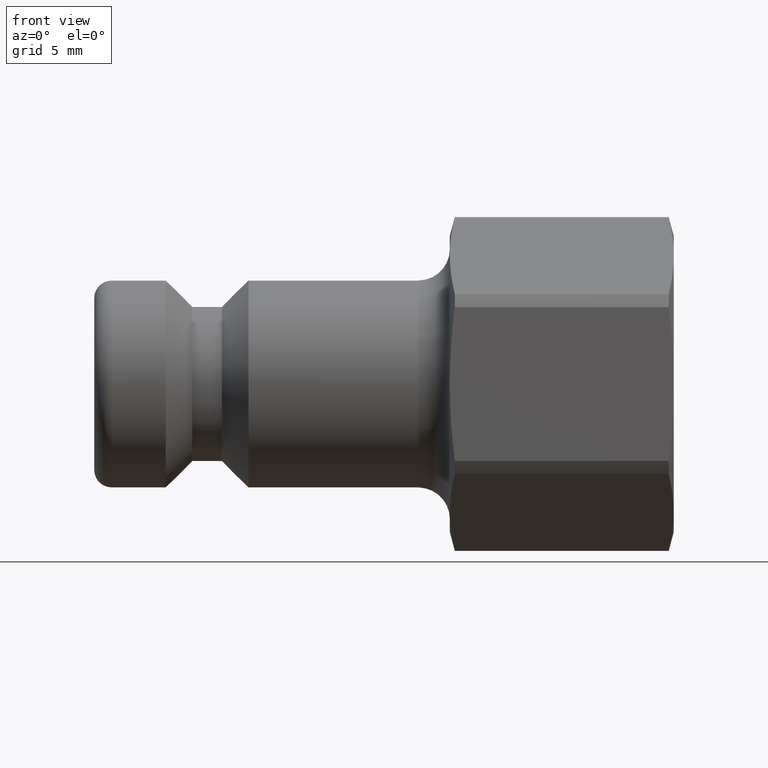
[diagram: clean part render]
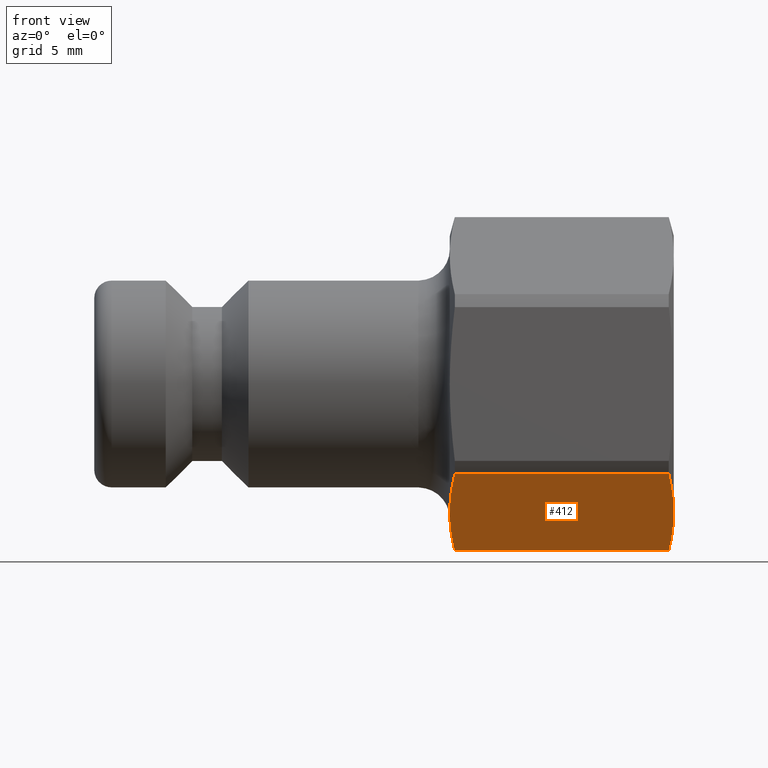
[diagram: same view with one face highlighted and labeled with its STEP entity id]
A machine part, front view. The second image highlights one B-rep face of the part: STEP entity #412.
In plain terms, the highlighted planar face has unit normal (0, 0.5, 0.866).
Its self-contained STEP definition (entity closure, byte-faithful):
#141=CARTESIAN_POINT('',(20.399999999999999,-4.250000000000004,-7.361215932167728));
#142=VERTEX_POINT('',#141);
#331=CARTESIAN_POINT('',(34.482762852840338,-4.250000000000004,-7.361215932167728));
#332=DIRECTION('',(0.0,0.500000000000000,0.866025403784438));
#333=DIRECTION('',(0.0,-0.866025403784438,0.500000000000000));
#334=AXIS2_PLACEMENT_3D('',#331,#332,#333);
#335=PLANE('',#334);
#336=CARTESIAN_POINT('',(20.688045381863454,-0.432544204578139,-9.565225063274042));
#337=VERTEX_POINT('',#336);
#338=CARTESIAN_POINT('',(20.688045381863454,-0.432544204578108,-9.565225063274060));
#339=CARTESIAN_POINT('',(20.400000000000009,-2.454792572000709,-8.397679423974338));
#340=CARTESIAN_POINT('',(20.400000000000006,-4.250000000000004,-7.361215932167728));
#348=(BOUNDED_CURVE()B_SPLINE_CURVE(2,(#338,#339,#340),.UNSPECIFIED.,.F.,.U.)B_SPLINE_CURVE_WITH_KNOTS((3,3),(0.0,0.441955310884674),.UNSPECIFIED.)CURVE()GEOMETRIC_REPRESENTATION_ITEM()RATIONAL_B_SPLINE_CURVE((1.0,1.031133014754907,1.0))REPRESENTATION_ITEM(''));
#349=EDGE_CURVE('',#337,#142,#348,.T.);
#350=ORIENTED_EDGE('',*,*,#349,.F.);
#351=CARTESIAN_POINT('',(32.961954618136538,-0.432544204578139,-9.565225063274042));
#352=VERTEX_POINT('',#351);
#353=CARTESIAN_POINT('',(32.961954618136545,-0.432544204578139,-9.565225063274042));
#354=DIRECTION('',(-1.0,0.0,0.0));
#355=VECTOR('',#354,12.273909236273091);
#356=LINE('',#353,#355);
#357=EDGE_CURVE('',#352,#337,#356,.T.);
#358=ORIENTED_EDGE('',*,*,#357,.F.);
#359=CARTESIAN_POINT('',(33.250000000000000,-4.250000000000004,-7.361215932167728));
#360=VERTEX_POINT('',#359);
#361=CARTESIAN_POINT('',(33.250000000000000,-4.250000000000004,-7.361215932167728));
#362=CARTESIAN_POINT('',(33.250000000000000,-2.454792572000780,-8.397679423974296));
#363=CARTESIAN_POINT('',(32.961954618136538,-0.432544204578139,-9.565225063274042));
#371=(BOUNDED_CURVE()B_SPLINE_CURVE(2,(#361,#362,#363),.UNSPECIFIED.,.F.,.U.)B_SPLINE_CURVE_WITH_KNOTS((3,3),(0.441955310884671,0.883910621769342),.UNSPECIFIED.)CURVE()GEOMETRIC_REPRESENTATION_ITEM()RATIONAL_B_SPLINE_CURVE((1.0,1.031133014754922,1.0))REPRESENTATION_ITEM(''));
#372=EDGE_CURVE('',#360,#352,#371,.T.);
#373=ORIENTED_EDGE('',*,*,#372,.F.);
#374=CARTESIAN_POINT('',(32.961954618136538,-8.067455795421870,-5.157206801061413));
#375=VERTEX_POINT('',#374);
#376=CARTESIAN_POINT('',(32.961954618136538,-8.067455795421868,-5.157206801061415));
#377=CARTESIAN_POINT('',(33.250000000000007,-6.045207427999194,-6.324752440361178));
#378=CARTESIAN_POINT('',(33.250000000000000,-4.250000000000004,-7.361215932167728));
#386=(BOUNDED_CURVE()B_SPLINE_CURVE(2,(#376,#377,#378),.UNSPECIFIED.,.F.,.U.)B_SPLINE_CURVE_WITH_KNOTS((3,3),(0.0,0.441955310884671),.UNSPECIFIED.)CURVE()GEOMETRIC_REPRESENTATION_ITEM()RATIONAL_B_SPLINE_CURVE((1.0,1.031133014754933,1.0))REPRESENTATION_ITEM(''));
#387=EDGE_CURVE('',#375,#360,#386,.T.);
#388=ORIENTED_EDGE('',*,*,#387,.F.);
#389=CARTESIAN_POINT('',(20.688045381863454,-8.067455795421870,-5.157206801061413));
#390=VERTEX_POINT('',#389);
#391=CARTESIAN_POINT('',(20.688045381863454,-8.067455795421870,-5.157206801061413));
#392=DIRECTION('',(1.0,0.0,0.0));
#393=VECTOR('',#392,12.273909236273091);
#394=LINE('',#391,#393);
#395=EDGE_CURVE('',#390,#375,#394,.T.);
#396=ORIENTED_EDGE('',*,*,#395,.F.);
#397=CARTESIAN_POINT('',(20.400000000000006,-4.250000000000004,-7.361215932167728));
#398=CARTESIAN_POINT('',(20.399999999999999,-6.045207427999300,-6.324752440361117));
#399=CARTESIAN_POINT('',(20.688045381863454,-8.067455795421900,-5.157206801061395));
#407=(BOUNDED_CURVE()B_SPLINE_CURVE(2,(#397,#398,#399),.UNSPECIFIED.,.F.,.U.)B_SPLINE_CURVE_WITH_KNOTS((3,3),(0.441955310884674,0.883910621769349),.UNSPECIFIED.)CURVE()GEOMETRIC_REPRESENTATION_ITEM()RATIONAL_B_SPLINE_CURVE((1.0,1.031133014754903,1.0))REPRESENTATION_ITEM(''));
#408=EDGE_CURVE('',#142,#390,#407,.T.);
#409=ORIENTED_EDGE('',*,*,#408,.F.);
#410=EDGE_LOOP('',(#350,#358,#373,#388,#396,#409));
#411=FACE_OUTER_BOUND('',#410,.T.);
#412=ADVANCED_FACE('',(#411),#335,.F.);